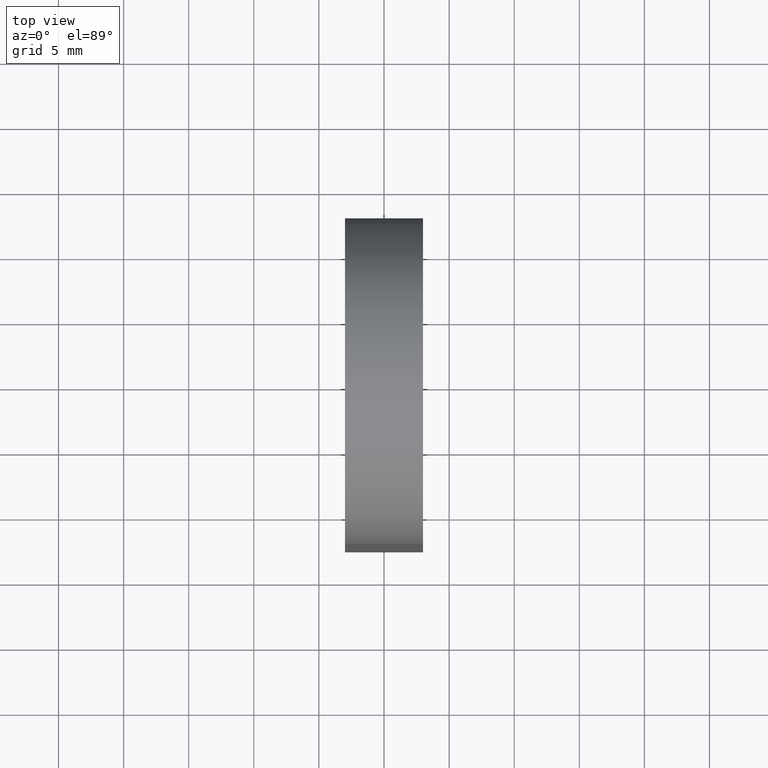
[diagram: clean part render]
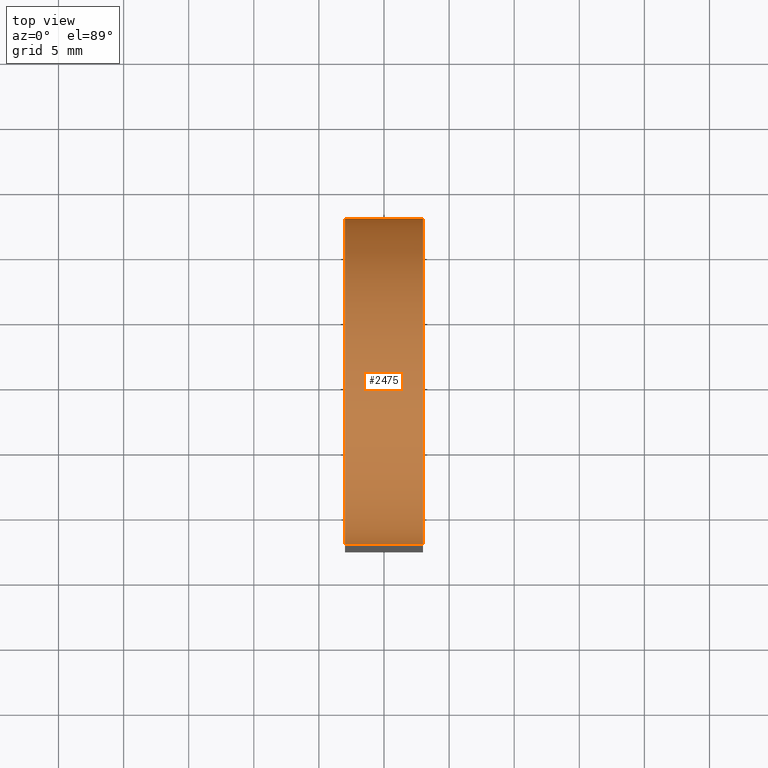
[diagram: same view with one face highlighted and labeled with its STEP entity id]
A machine part, top view. The second image highlights one B-rep face of the part: STEP entity #2475.
In plain terms, the highlighted cylindrical surface (partial cylindrical patch) has radius 12.5 mm, axis along (-1, -0, -0).
Its self-contained STEP definition (entity closure, byte-faithful):
#304 = VERTEX_POINT ( 'NONE', #9045 ) ;
#506 = CARTESIAN_POINT ( 'NONE',  ( 3.000000000000000000, 0.000000000000000000, 37.50000000000000000 ) ) ;
#835 = EDGE_CURVE ( 'NONE', #6148, #304, #8347, .T. ) ;
#1095 = ORIENTED_EDGE ( 'NONE', *, *, #2327, .T. ) ;
#1242 = CARTESIAN_POINT ( 'NONE',  ( -3.000000000000000000, 0.000000000000000000, 37.50000000000000000 ) ) ;
#1538 = CARTESIAN_POINT ( 'NONE',  ( 3.000000000000000000, -12.50000000000000178, 37.50000000000000000 ) ) ;
#2100 = DIRECTION ( 'NONE',  ( 0.000000000000000000, 0.000000000000000000, 1.000000000000000000 ) ) ;
#2187 = EDGE_CURVE ( 'NONE', #6148, #8131, #10466, .T. ) ;
#2261 = CARTESIAN_POINT ( 'NONE',  ( 3.000000000000000000, 12.50000000000000178, 37.50000000000000000 ) ) ;
#2327 = EDGE_CURVE ( 'NONE', #8131, #11522, #5691, .T. ) ;
#2475 = ADVANCED_FACE ( 'NONE', ( #10317 ), #3161, .T. ) ;
#3123 = EDGE_LOOP ( 'NONE', ( #4105, #11422, #4684, #1095 ) ) ;
#3161 = CYLINDRICAL_SURFACE ( 'NONE', #4165, 12.50000000000000355 ) ;
#3642 = CARTESIAN_POINT ( 'NONE',  ( -3.000000000000000000, 12.50000000000000178, 37.50000000000000000 ) ) ;
#3998 = DIRECTION ( 'NONE',  ( -1.000000000000000000, -0.000000000000000000, 0.000000000000000000 ) ) ;
#4105 = ORIENTED_EDGE ( 'NONE', *, *, #10166, .F. ) ;
#4165 = AXIS2_PLACEMENT_3D ( 'NONE', #4203, #5011, #7728 ) ;
#4203 = CARTESIAN_POINT ( 'NONE',  ( 3.000000000000000000, 0.000000000000000000, 37.50000000000000000 ) ) ;
#4684 = ORIENTED_EDGE ( 'NONE', *, *, #2187, .T. ) ;
#4712 = AXIS2_PLACEMENT_3D ( 'NONE', #1242, #3998, #2100 ) ;
#5011 = DIRECTION ( 'NONE',  ( -1.000000000000000000, -0.000000000000000000, -0.000000000000000000 ) ) ;
#5053 = DIRECTION ( 'NONE',  ( 0.000000000000000000, 0.000000000000000000, 1.000000000000000000 ) ) ;
#5363 = AXIS2_PLACEMENT_3D ( 'NONE', #506, #8616, #5053 ) ;
#5666 = CARTESIAN_POINT ( 'NONE',  ( 3.000000000000000000, 12.50000000000000178, 37.50000000000000000 ) ) ;
#5691 = LINE ( 'NONE', #5666, #9596 ) ;
#5848 = VECTOR ( 'NONE', #8501, 1000.000000000000000 ) ;
#6148 = VERTEX_POINT ( 'NONE', #10172 ) ;
#6183 = CIRCLE ( 'NONE', #4712, 12.50000000000000355 ) ;
#6846 = DIRECTION ( 'NONE',  ( -1.000000000000000000, -0.000000000000000000, -0.000000000000000000 ) ) ;
#7728 = DIRECTION ( 'NONE',  ( 0.000000000000000000, 0.000000000000000000, 1.000000000000000000 ) ) ;
#8131 = VERTEX_POINT ( 'NONE', #2261 ) ;
#8347 = LINE ( 'NONE', #1538, #5848 ) ;
#8501 = DIRECTION ( 'NONE',  ( -1.000000000000000000, -0.000000000000000000, -0.000000000000000000 ) ) ;
#8616 = DIRECTION ( 'NONE',  ( -1.000000000000000000, -0.000000000000000000, 0.000000000000000000 ) ) ;
#9045 = CARTESIAN_POINT ( 'NONE',  ( -3.000000000000000000, -12.50000000000000178, 37.50000000000000000 ) ) ;
#9596 = VECTOR ( 'NONE', #6846, 1000.000000000000000 ) ;
#10166 = EDGE_CURVE ( 'NONE', #304, #11522, #6183, .T. ) ;
#10172 = CARTESIAN_POINT ( 'NONE',  ( 3.000000000000000000, -12.50000000000000178, 37.50000000000000000 ) ) ;
#10317 = FACE_OUTER_BOUND ( 'NONE', #3123, .T. ) ;
#10466 = CIRCLE ( 'NONE', #5363, 12.50000000000000355 ) ;
#11422 = ORIENTED_EDGE ( 'NONE', *, *, #835, .F. ) ;
#11522 = VERTEX_POINT ( 'NONE', #3642 ) ;